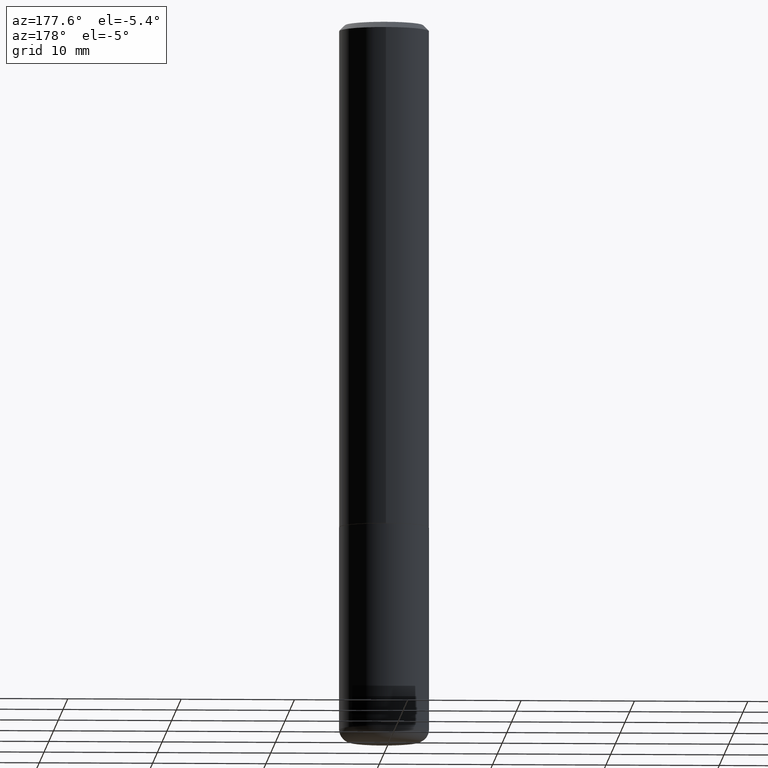
[diagram: clean part render]
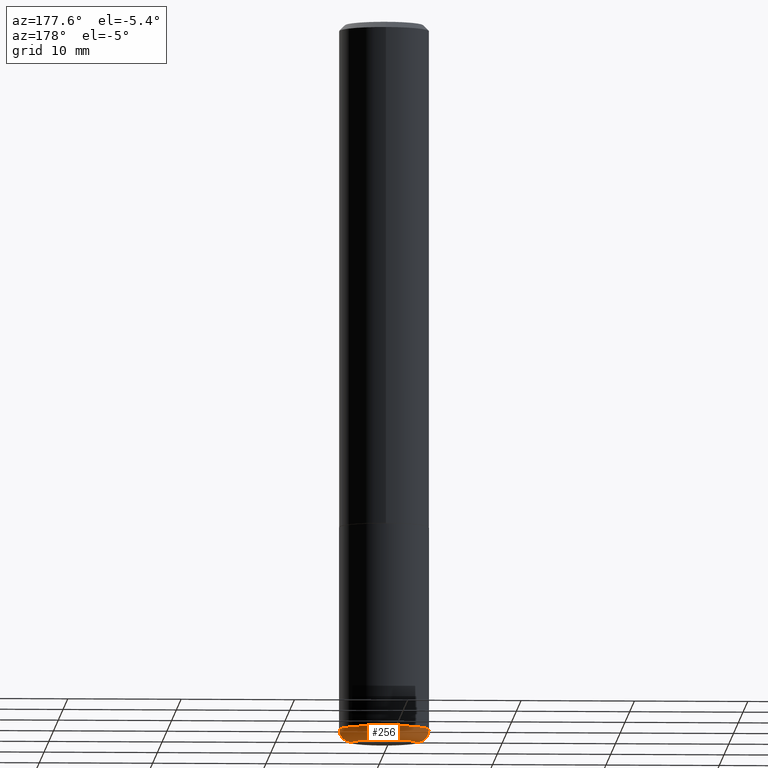
[diagram: same view with one face highlighted and labeled with its STEP entity id]
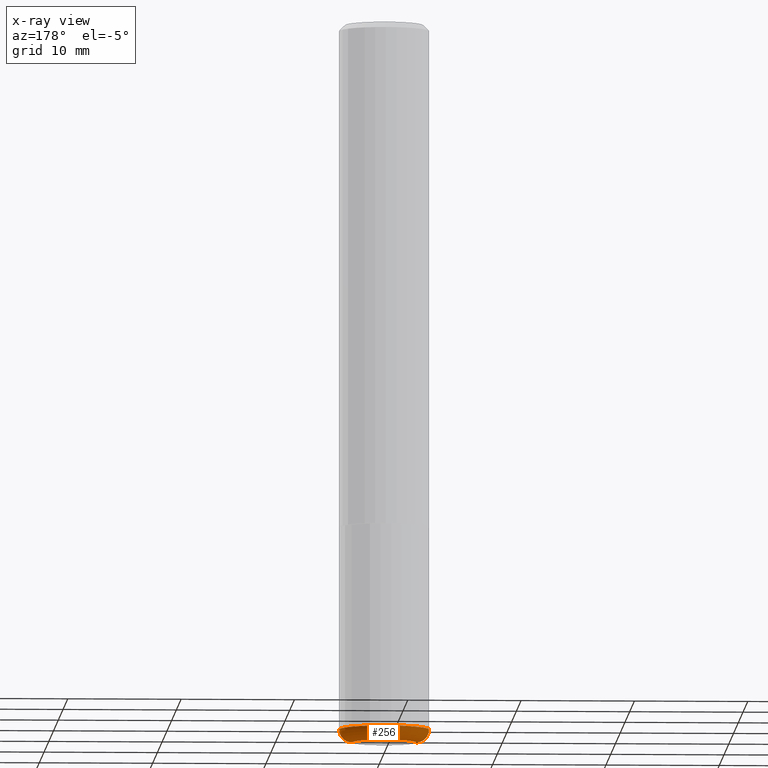
[diagram: x-ray of the same camera — body ghosted, the highlighted face saturated]
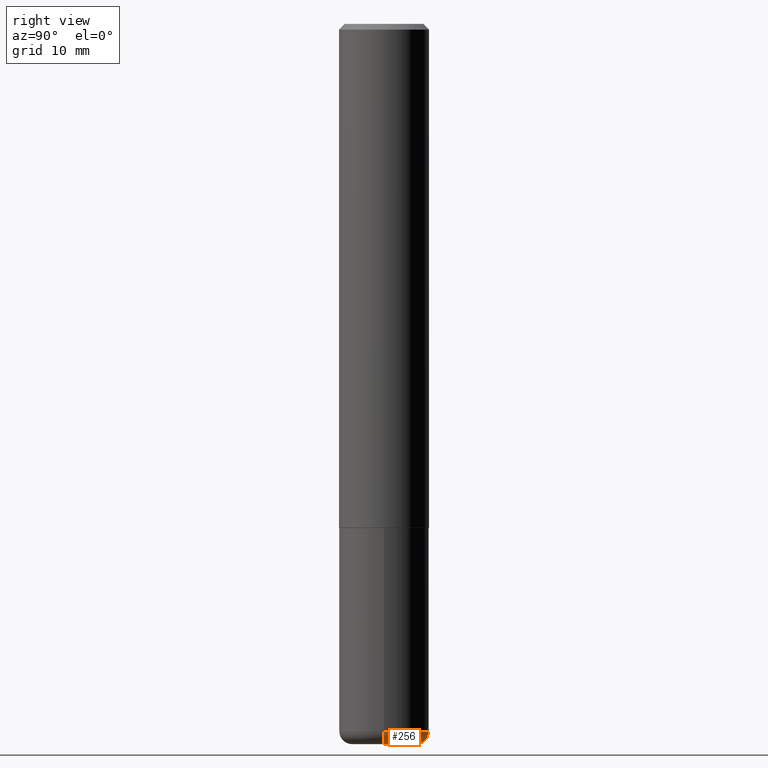
[diagram: same view with one face highlighted and labeled with its STEP entity id]
A machine part, auxiliary view. The second image highlights one B-rep face of the part: STEP entity #256.
The next image is the same camera in x-ray: the body ghosted, the highlighted face saturated — about 0% of this face is hidden behind the body in this view.
A second angle (right view) of the same face is appended — the face is thin or edge-on in the first view.
In plain terms, the highlighted toroidal blend (fillet) surface has major radius 2.8257 mm and minor (blend) radius 1.143 mm.
Its self-contained STEP definition (entity closure, byte-faithful):
#15 = VERTEX_POINT ( 'NONE', #252 ) ;
#49 = EDGE_LOOP ( 'NONE', ( #150, #50, #119, #149 ) ) ;
#50 = ORIENTED_EDGE ( 'NONE', *, *, #120, .T. ) ;
#56 = CARTESIAN_POINT ( 'NONE',  ( -0.1562500000000000000, -7.461363662234766770E-15, -2.455000000000000071 ) ) ;
#64 = CARTESIAN_POINT ( 'NONE',  ( 6.113672015462842613E-29, -8.728703347107864943E-15, -2.500000000000000000 ) ) ;
#67 = CIRCLE ( 'NONE', #305, 0.04499999999999996364 ) ;
#69 = DIRECTION ( 'NONE',  ( 1.000000000000000000, -6.982962677686269077E-15, 0.000000000000000000 ) ) ;
#71 = VERTEX_POINT ( 'NONE', #362 ) ;
#83 = CARTESIAN_POINT ( 'NONE',  ( -0.1112500000000000017, -7.781107893326811349E-15, -2.455000000000000071 ) ) ;
#106 = DIRECTION ( 'NONE',  ( -6.982962677686266711E-15, -1.000000000000000000, 3.491481338843145583E-15 ) ) ;
#119 = ORIENTED_EDGE ( 'NONE', *, *, #380, .F. ) ;
#120 = EDGE_CURVE ( 'NONE', #15, #403, #67, .T. ) ;
#135 = DIRECTION ( 'NONE',  ( -2.445468806185136597E-29, 3.491481338843145583E-15, 1.000000000000000000 ) ) ;
#148 = AXIS2_PLACEMENT_3D ( 'NONE', #414, #386, #227 ) ;
#149 = ORIENTED_EDGE ( 'NONE', *, *, #279, .F. ) ;
#150 = ORIENTED_EDGE ( 'NONE', *, *, #242, .T. ) ;
#153 = CIRCLE ( 'NONE', #276, 0.04499999999999996364 ) ;
#166 = DIRECTION ( 'NONE',  ( 7.105427357601001859E-15, 1.000000000000000000, -3.491481338843145583E-15 ) ) ;
#210 = CARTESIAN_POINT ( 'NONE',  ( 6.003625919184510659E-29, -8.571586686859923311E-15, -2.455000000000000071 ) ) ;
#211 = AXIS2_PLACEMENT_3D ( 'NONE', #210, #135, #396 ) ;
#219 = CIRCLE ( 'NONE', #327, 0.1112500000000000017 ) ;
#227 = DIRECTION ( 'NONE',  ( 1.000000000000000000, -6.982962677686269077E-15, 0.000000000000000000 ) ) ;
#242 = EDGE_CURVE ( 'NONE', #71, #15, #219, .T. ) ;
#252 = CARTESIAN_POINT ( 'NONE',  ( -0.1112500000000000017, -7.699794107904759087E-15, -2.500000000000000000 ) ) ;
#256 = ADVANCED_FACE ( 'NONE', ( #337 ), #338, .T. ) ;
#257 = DIRECTION ( 'NONE',  ( -1.000000000000000000, 7.105427357600996337E-15, 0.000000000000000000 ) ) ;
#276 = AXIS2_PLACEMENT_3D ( 'NONE', #363, #106, #303 ) ;
#279 = EDGE_CURVE ( 'NONE', #71, #402, #153, .T. ) ;
#303 = DIRECTION ( 'NONE',  ( 1.000000000000000000, -6.982962677686273810E-15, 0.000000000000000000 ) ) ;
#305 = AXIS2_PLACEMENT_3D ( 'NONE', #83, #166, #257 ) ;
#327 = AXIS2_PLACEMENT_3D ( 'NONE', #64, #334, #69 ) ;
#334 = DIRECTION ( 'NONE',  ( -2.445468806185136597E-29, 3.491481338843145583E-15, 1.000000000000000000 ) ) ;
#335 = CIRCLE ( 'NONE', #148, 0.1562500000000000000 ) ;
#337 = FACE_OUTER_BOUND ( 'NONE', #49, .T. ) ;
#338 = TOROIDAL_SURFACE ( 'NONE', #211, 0.1112500000000000017, 0.04499999999999996364 ) ;
#354 = CARTESIAN_POINT ( 'NONE',  ( 0.1562500000000000000, -9.662674605248401695E-15, -2.455000000000000071 ) ) ;
#362 = CARTESIAN_POINT ( 'NONE',  ( 0.1112500000000000017, -9.505557945000461641E-15, -2.500000000000000000 ) ) ;
#363 = CARTESIAN_POINT ( 'NONE',  ( 0.1112500000000000017, -9.348441284752520009E-15, -2.455000000000000071 ) ) ;
#380 = EDGE_CURVE ( 'NONE', #402, #403, #335, .T. ) ;
#386 = DIRECTION ( 'NONE',  ( -2.445468806185136597E-29, 3.491481338843145583E-15, 1.000000000000000000 ) ) ;
#396 = DIRECTION ( 'NONE',  ( 1.000000000000000000, -6.982962677686270655E-15, 4.883557194083114022E-29 ) ) ;
#402 = VERTEX_POINT ( 'NONE', #354 ) ;
#403 = VERTEX_POINT ( 'NONE', #56 ) ;
#414 = CARTESIAN_POINT ( 'NONE',  ( 6.003625919184510659E-29, -8.571586686859923311E-15, -2.455000000000000071 ) ) ;